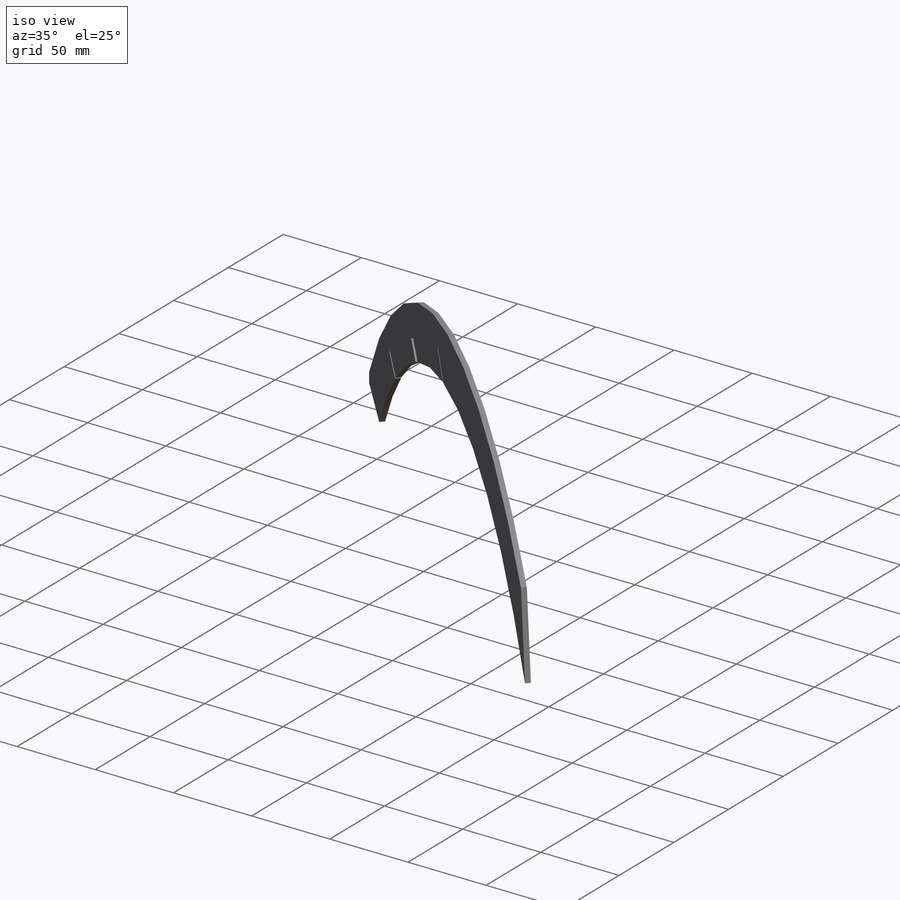
[diagram: iso view]
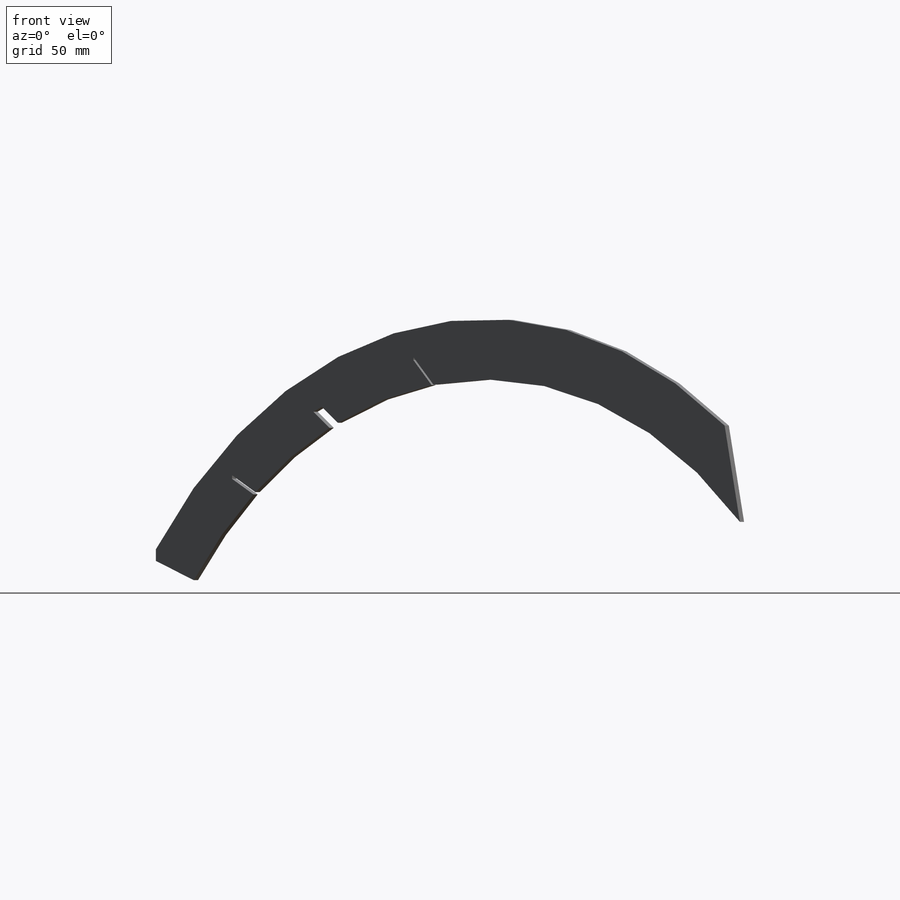
[diagram: front view]
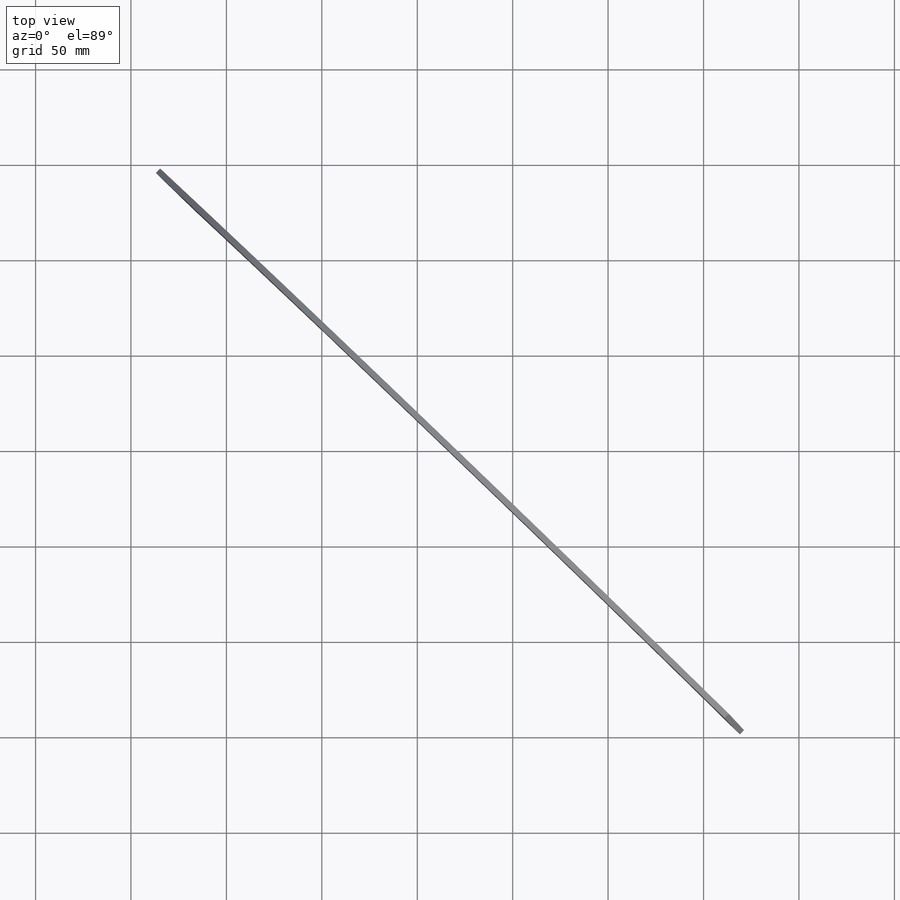
[diagram: top view]
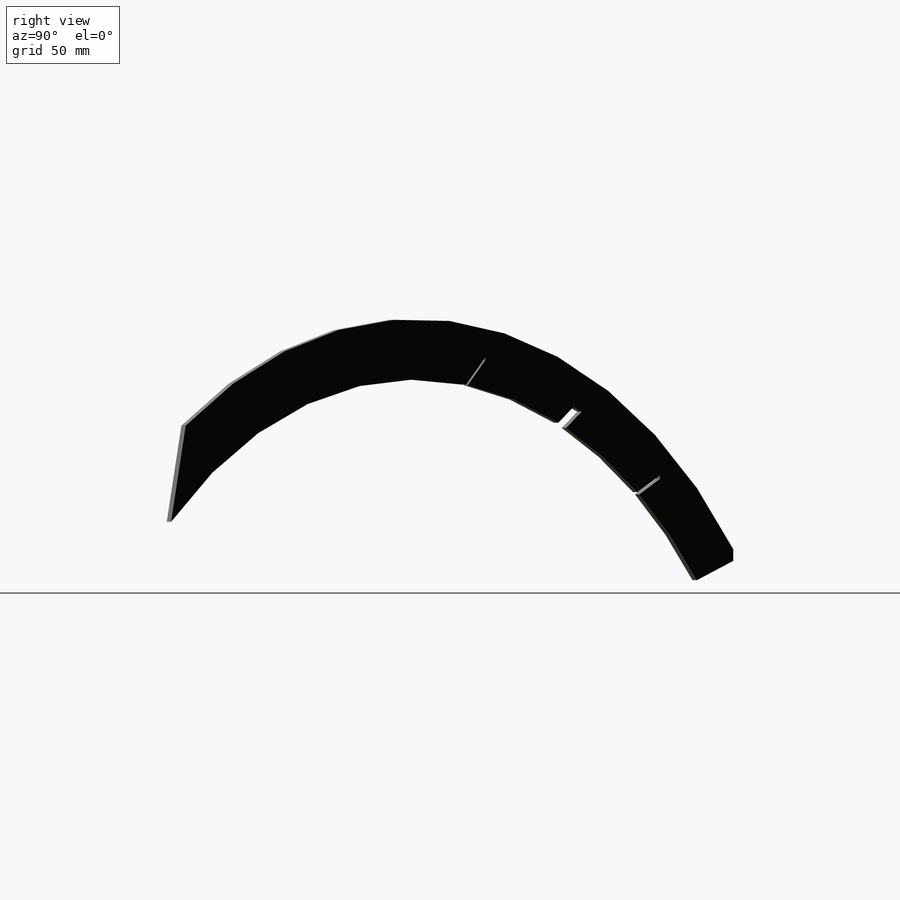
[diagram: right view]
SOLIDWORKS PART (.sldprt)
format: sldprt  version: not decoded by parser v0  size: 894,976 bytes
history: native  units: mm
features: sketch x18, cut_extrude x18, material x1 (+13 scaffold rows collapsed)
feature tree (50):
  scaffold x13  (default folders/planes/origin — collapsed)
  material  "Plain Carbon Steel"
  sketch  "Sketch6"
  cut_extrude  "Cut-Extrude6"  [1 undecoded]
  sketch  "Sketch7"
  cut_extrude  "Cut-Extrude7"  [1 undecoded]
  sketch  "Sketch8"
  cut_extrude  "Cut-Extrude8"  [1 undecoded]
  sketch  "Sketch9"
  cut_extrude  "Cut-Extrude9"  [1 undecoded]
  sketch  "Sketch10"  dims[D1=25.4mm]
  cut_extrude  "Cut-Extrude10"  [1 undecoded]
  sketch  "Sketch11"  dims[D1=9.525mm]
  cut_extrude  "Cut-Extrude11"  [1 undecoded]
  sketch  "Sketch12"
  cut_extrude  "Cut-Extrude12"  [1 undecoded]
  sketch  "Sketch13"
  cut_extrude  "Cut-Extrude13"  [1 undecoded]
  sketch  "Sketch14"  dims[D1=12.7mm]
  cut_extrude  "Cut-Extrude14"  [1 undecoded]
  sketch  "Sketch15"  dims[D1=1.016mm D2=1.016mm]
  cut_extrude  "Cut-Extrude16"  [1 undecoded]
  sketch  "Sketch16"
  cut_extrude  "Cut-Extrude17"  [1 undecoded]
  sketch  "Sketch17"
  cut_extrude  "Cut-Extrude18"  [1 undecoded]
  sketch  "Sketch18"
  cut_extrude  "Cut-Extrude19"  [1 undecoded]
  sketch  "Sketch19"
  cut_extrude  "Cut-Extrude20"  [1 undecoded]
  sketch  "Sketch20"
  cut_extrude  "Cut-Extrude24"  [1 undecoded]
  sketch  "Sketch21"  dims[D1=0.762mm D2=0.762mm]
  cut_extrude  "Cut-Extrude25"  [1 undecoded]
  sketch  "Sketch22"
  cut_extrude  "Cut-Extrude26"  [1 undecoded]
  sketch  "Sketch23"
  cut_extrude  "Cut-Extrude30"  [1 undecoded]
decode coverage: 5 of 36 modeling features carry decoded parameters
note: 18 parameter values undecoded
summary: no parameter record found for 18 features
note: suppression state not decoded; provenance and decode notes live in map.json
